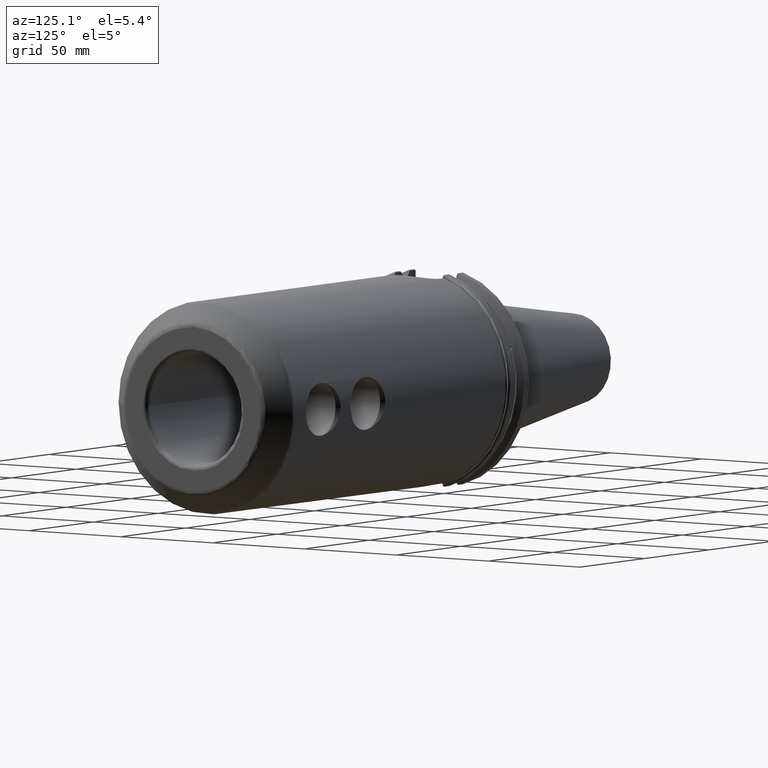
[diagram: clean part render]
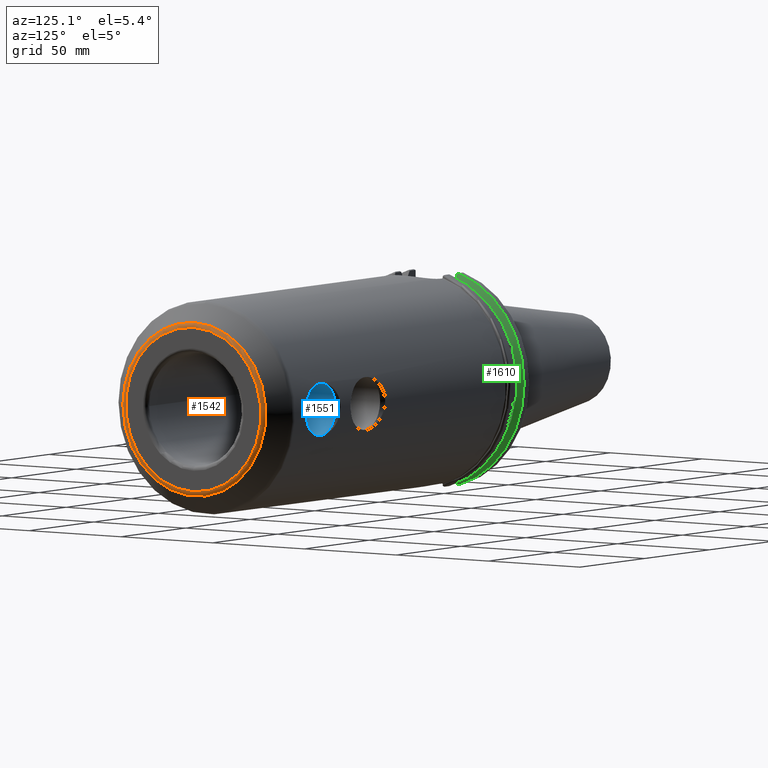
[diagram: same view with three faces highlighted in distinct colors, each labeled with its STEP entity id]
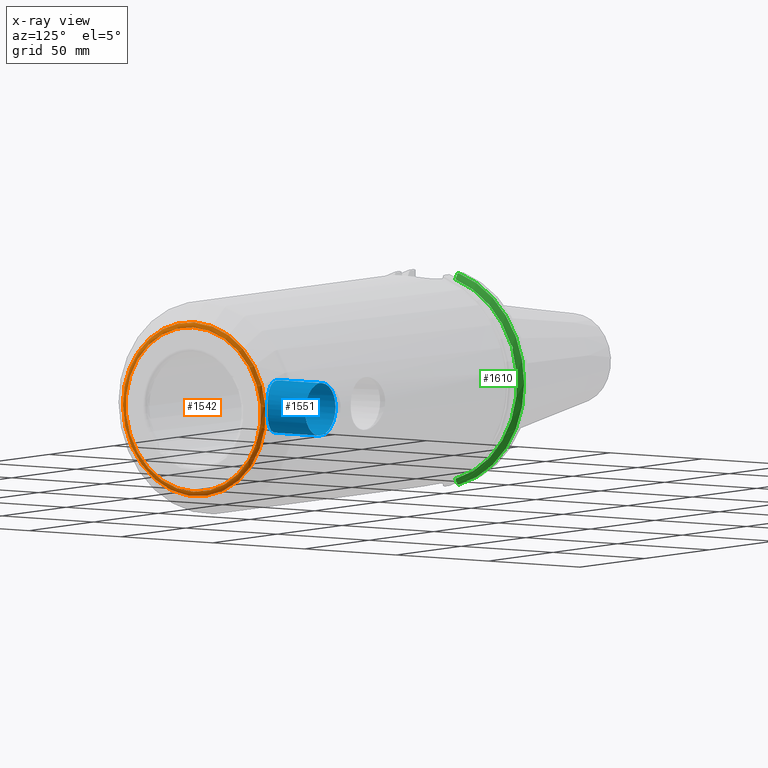
[diagram: x-ray of the same camera — body ghosted, the three highlighted faces saturated]
A machine part, auxiliary view with three faces highlighted in distinct colors.
The next image is the same camera in x-ray (body ghosted, the three faces saturated) — at least one of them is partly hidden behind the body in this view.
Their STEP definitions:

[orange] entity #1542 — the highlighted toroidal blend (fillet) surface has major radius 36.7574 mm and minor (blend) radius 3 mm.
#315=FACE_OUTER_BOUND('',#406,.T.);
#406=EDGE_LOOP('',(#1086,#1087,#1088,#1089,#1090));
#515=CIRCLE('',#1662,36.7573593128807);
#518=CIRCLE('',#1667,3.);
#519=CIRCLE('',#1668,38.8786796564404);
#520=CIRCLE('',#1669,38.8786796564404);
#661=VERTEX_POINT('',#2459);
#668=VERTEX_POINT('',#2561);
#669=VERTEX_POINT('',#2563);
#828=EDGE_CURVE('',#661,#661,#515,.T.);
#836=EDGE_CURVE('',#661,#668,#518,.T.);
#837=EDGE_CURVE('',#668,#669,#519,.T.);
#838=EDGE_CURVE('',#669,#668,#520,.T.);
#1086=ORIENTED_EDGE('',*,*,#828,.T.);
#1087=ORIENTED_EDGE('',*,*,#836,.T.);
#1088=ORIENTED_EDGE('',*,*,#837,.T.);
#1089=ORIENTED_EDGE('',*,*,#838,.T.);
#1090=ORIENTED_EDGE('',*,*,#836,.F.);
#1528=TOROIDAL_SURFACE('',#1666,36.7573593128807,3.);
#1542=ADVANCED_FACE('',(#315),#1528,.T.);
#1662=AXIS2_PLACEMENT_3D('',#2460,#1856,#1857);
#1666=AXIS2_PLACEMENT_3D('',#2560,#1865,#1866);
#1667=AXIS2_PLACEMENT_3D('',#2562,#1867,#1868);
#1668=AXIS2_PLACEMENT_3D('',#2564,#1869,#1870);
#1669=AXIS2_PLACEMENT_3D('',#2565,#1871,#1872);
#1856=DIRECTION('center_axis',(-1.,0.,0.));
#1857=DIRECTION('ref_axis',(0.,-1.,1.83697019872103E-16));
#1865=DIRECTION('center_axis',(1.,0.,0.));
#1866=DIRECTION('ref_axis',(0.,0.,-1.));
#1867=DIRECTION('center_axis',(0.,-1.,-1.22464679914735E-16));
#1868=DIRECTION('ref_axis',(0.,-1.22464679914735E-16,1.));
#1869=DIRECTION('center_axis',(1.,0.,0.));
#1870=DIRECTION('ref_axis',(0.,-1.,3.06161699786838E-17));
#1871=DIRECTION('center_axis',(1.,0.,0.));
#1872=DIRECTION('ref_axis',(0.,-1.,3.06161699786838E-17));
#2459=CARTESIAN_POINT('',(193.8,-4.50147824276285E-15,36.7573593128807));
#2460=CARTESIAN_POINT('Origin',(193.8,0.,0.));
#2560=CARTESIAN_POINT('Origin',(190.8,0.,0.));
#2561=CARTESIAN_POINT('',(192.92132034356,-4.7612650596335E-15,38.8786796564404));
#2562=CARTESIAN_POINT('Origin',(190.8,-4.50147824276285E-15,36.7573593128807));
#2563=CARTESIAN_POINT('',(192.92132034356,-38.8786796564404,-4.7612650596335E-15));
#2564=CARTESIAN_POINT('Origin',(192.92132034356,0.,-5.95158132454188E-15));
#2565=CARTESIAN_POINT('Origin',(192.92132034356,0.,-5.95158132454188E-15));

[blue] entity #1551 — the highlighted cylindrical surface (bore or boss wall) has radius 11.7221 mm, axis along (0, 1, 0).
#121=LINE('',#2614,#209);
#209=VECTOR('',#1922,11.7221);
#286=CYLINDRICAL_SURFACE('',#1688,11.7221);
#324=FACE_OUTER_BOUND('',#415,.T.);
#415=EDGE_LOOP('',(#1135,#1136,#1137,#1138,#1139));
#530=CIRCLE('',#1687,11.7221);
#598=B_SPLINE_CURVE_WITH_KNOTS('',3,(#2516,#2517,#2518,#2519,#2520,#2521,
#2522,#2523,#2524,#2525,#2526,#2527,#2528,#2529,#2530,#2531,#2532,#2533,
#2534,#2535,#2536,#2537,#2538,#2539,#2540,#2541,#2542,#2543,#2544,#2545,
#2546,#2547),.UNSPECIFIED.,.F.,.F.,(4,2,2,2,2,2,2,2,2,2,2,2,2,2,2,4),(0.,
0.224753345659515,0.44950669131903,0.89901338263806,1.34766690278389,1.79632042292972,
2.24497394307556,2.69362746322139,3.14313415454042,3.36788750019993,3.59264084585945,
3.81739419151896,4.04214753717848,4.49165422849751,4.94030774864334,5.38896126878917),
 .UNSPECIFIED.);
#599=B_SPLINE_CURVE_WITH_KNOTS('',3,(#2548,#2549,#2550,#2551,#2552,#2553,
#2554,#2555,#2556,#2557,#2558,#2559),.UNSPECIFIED.,.F.,.F.,(4,2,2,2,2,4),
(5.38896126878917,5.83761478893501,6.28626830908084,6.73577500039987,6.96052834605938,
7.1852816917189),.UNSPECIFIED.);
#666=VERTEX_POINT('',#2514);
#667=VERTEX_POINT('',#2515);
#681=VERTEX_POINT('',#2610);
#834=EDGE_CURVE('',#666,#667,#598,.T.);
#835=EDGE_CURVE('',#667,#666,#599,.T.);
#860=EDGE_CURVE('',#681,#681,#530,.T.);
#861=EDGE_CURVE('',#681,#667,#121,.T.);
#1135=ORIENTED_EDGE('',*,*,#860,.T.);
#1136=ORIENTED_EDGE('',*,*,#861,.T.);
#1137=ORIENTED_EDGE('',*,*,#834,.F.);
#1138=ORIENTED_EDGE('',*,*,#835,.F.);
#1139=ORIENTED_EDGE('',*,*,#861,.F.);
#1551=ADVANCED_FACE('',(#324),#286,.F.);
#1687=AXIS2_PLACEMENT_3D('',#2612,#1918,#1919);
#1688=AXIS2_PLACEMENT_3D('',#2613,#1920,#1921);
#1918=DIRECTION('center_axis',(0.,1.,0.));
#1919=DIRECTION('ref_axis',(-1.,0.,0.));
#1920=DIRECTION('center_axis',(0.,1.,0.));
#1921=DIRECTION('ref_axis',(-1.,0.,0.));
#1922=DIRECTION('',(0.,-1.,0.));
#2514=CARTESIAN_POINT('',(160.8,22.5333613025221,-11.7221));
#2515=CARTESIAN_POINT('',(172.5221,25.4,2.1271748883877E-15));
#2516=CARTESIAN_POINT('Ctrl Pts',(160.8,22.5333613025221,-11.7221));
#2517=CARTESIAN_POINT('Ctrl Pts',(160.050822181135,22.5333613025221,-11.7221));
#2518=CARTESIAN_POINT('Ctrl Pts',(159.280543693546,22.5718036598004,-11.6491388330942));
#2519=CARTESIAN_POINT('Ctrl Pts',(157.756481741729,22.7253289562751,-11.3467255072969));
#2520=CARTESIAN_POINT('Ctrl Pts',(157.002653001865,22.8401860848915,-11.1173869403761));
#2521=CARTESIAN_POINT('Ctrl Pts',(154.843161234683,23.2646449416797,-10.2155668802038));
#2522=CARTESIAN_POINT('Ctrl Pts',(153.54049681021,23.6541670271324,-9.318049609704));
#2523=CARTESIAN_POINT('Ctrl Pts',(151.48390396796,24.3641625206674,-7.26145676745388));
#2524=CARTESIAN_POINT('Ctrl Pts',(150.584932396075,24.7347054681876,-5.95809888288209));
#2525=CARTESIAN_POINT('Ctrl Pts',(149.381356426275,25.255563041573,-3.07589548959986));
#2526=CARTESIAN_POINT('Ctrl Pts',(149.0779,25.4,-1.49551173381944));
#2527=CARTESIAN_POINT('Ctrl Pts',(149.0779,25.4,1.49551173381944));
#2528=CARTESIAN_POINT('Ctrl Pts',(149.381356426275,25.255563041573,3.07589548959986));
#2529=CARTESIAN_POINT('Ctrl Pts',(150.584932396075,24.7347054681876,5.95809888288209));
#2530=CARTESIAN_POINT('Ctrl Pts',(151.48390396796,24.3641625206674,7.26145676745388));
#2531=CARTESIAN_POINT('Ctrl Pts',(153.54049681021,23.6541670271324,9.318049609704));
#2532=CARTESIAN_POINT('Ctrl Pts',(154.843161234683,23.2646449416797,10.2155668802038));
#2533=CARTESIAN_POINT('Ctrl Pts',(157.002653001865,22.8401860848915,11.1173869403761));
#2534=CARTESIAN_POINT('Ctrl Pts',(157.756481741729,22.7253289562751,11.3467255072969));
#2535=CARTESIAN_POINT('Ctrl Pts',(159.280543693546,22.5718036598004,11.6491388330942));
#2536=CARTESIAN_POINT('Ctrl Pts',(160.050822181135,22.5333613025221,11.7221));
#2537=CARTESIAN_POINT('Ctrl Pts',(161.549177818865,22.5333613025221,11.7221));
#2538=CARTESIAN_POINT('Ctrl Pts',(162.319456306454,22.5718036598004,11.6491388330942));
#2539=CARTESIAN_POINT('Ctrl Pts',(163.843518258271,22.7253289562751,11.3467255072969));
#2540=CARTESIAN_POINT('Ctrl Pts',(164.597346998135,22.8401860848915,11.1173869403761));
#2541=CARTESIAN_POINT('Ctrl Pts',(166.756838765317,23.2646449416797,10.2155668802038));
#2542=CARTESIAN_POINT('Ctrl Pts',(168.05950318979,23.6541670271324,9.318049609704));
#2543=CARTESIAN_POINT('Ctrl Pts',(170.11609603204,24.3641625206674,7.26145676745388));
#2544=CARTESIAN_POINT('Ctrl Pts',(171.015067603925,24.7347054681876,5.95809888288208));
#2545=CARTESIAN_POINT('Ctrl Pts',(172.218643573725,25.255563041573,3.07589548959987));
#2546=CARTESIAN_POINT('Ctrl Pts',(172.5221,25.4,1.49551173381944));
#2547=CARTESIAN_POINT('Ctrl Pts',(172.5221,25.4,2.08166817117217E-15));
#2548=CARTESIAN_POINT('Ctrl Pts',(172.5221,25.4,5.82867087928207E-15));
#2549=CARTESIAN_POINT('Ctrl Pts',(172.5221,25.4,-1.49551173381944));
#2550=CARTESIAN_POINT('Ctrl Pts',(172.218643573725,25.255563041573,-3.07589548959987));
#2551=CARTESIAN_POINT('Ctrl Pts',(171.015067603925,24.7347054681876,-5.95809888288208));
#2552=CARTESIAN_POINT('Ctrl Pts',(170.11609603204,24.3641625206674,-7.26145676745388));
#2553=CARTESIAN_POINT('Ctrl Pts',(168.05950318979,23.6541670271324,-9.318049609704));
#2554=CARTESIAN_POINT('Ctrl Pts',(166.756838765317,23.2646449416797,-10.2155668802038));
#2555=CARTESIAN_POINT('Ctrl Pts',(164.597346998135,22.8401860848915,-11.1173869403761));
#2556=CARTESIAN_POINT('Ctrl Pts',(163.843518258271,22.7253289562751,-11.3467255072969));
#2557=CARTESIAN_POINT('Ctrl Pts',(162.319456306454,22.5718036598004,-11.6491388330942));
#2558=CARTESIAN_POINT('Ctrl Pts',(161.549177818865,22.5333613025221,-11.7221));
#2559=CARTESIAN_POINT('Ctrl Pts',(160.8,22.5333613025221,-11.7221));
#2610=CARTESIAN_POINT('',(172.5221,46.0071,-1.43554322442852E-15));
#2612=CARTESIAN_POINT('Origin',(160.8,46.0071,0.));
#2613=CARTESIAN_POINT('Origin',(160.8,27.625,0.));
#2614=CARTESIAN_POINT('',(172.5221,27.625,-1.43554322442852E-15));

[green] entity #1610 — the highlighted conical surface has half-angle 60 deg.
#26=(
BOUNDED_CURVE()
B_SPLINE_CURVE(2,(#3239,#3240,#3241),.UNSPECIFIED.,.F.,.F.)
B_SPLINE_CURVE_WITH_KNOTS((3,3),(0.,0.275823910674931),.UNSPECIFIED.)
CURVE()
GEOMETRIC_REPRESENTATION_ITEM()
RATIONAL_B_SPLINE_CURVE((1.,1.00038235574495,1.0001287363679))
REPRESENTATION_ITEM('')
);
#31=(
BOUNDED_CURVE()
B_SPLINE_CURVE(2,(#3381,#3382,#3383),.UNSPECIFIED.,.F.,.F.)
B_SPLINE_CURVE_WITH_KNOTS((3,3),(0.,0.064824047289788),.UNSPECIFIED.)
CURVE()
GEOMETRIC_REPRESENTATION_ITEM()
RATIONAL_B_SPLINE_CURVE((1.,1.00011477674855,1.00019140645979))
REPRESENTATION_ITEM('')
);
#32=(
BOUNDED_CURVE()
B_SPLINE_CURVE(2,(#3403,#3404,#3405),.UNSPECIFIED.,.F.,.F.)
B_SPLINE_CURVE_WITH_KNOTS((3,3),(0.0558332664474718,0.331657177124507),
 .UNSPECIFIED.)
CURVE()
GEOMETRIC_REPRESENTATION_ITEM()
RATIONAL_B_SPLINE_CURVE((1.00012873637085,1.00038235575372,1.))
REPRESENTATION_ITEM('')
);
#33=(
BOUNDED_CURVE()
B_SPLINE_CURVE(2,(#3421,#3422,#3423),.UNSPECIFIED.,.F.,.F.)
B_SPLINE_CURVE_WITH_KNOTS((3,3),(0.325260944932384,0.390084992222206),
 .UNSPECIFIED.)
CURVE()
GEOMETRIC_REPRESENTATION_ITEM()
RATIONAL_B_SPLINE_CURVE((1.00019140645948,1.00011477674836,1.))
REPRESENTATION_ITEM('')
);
#45=CONICAL_SURFACE('',#1796,47.8172386482472,1.0471975511966);
#383=FACE_OUTER_BOUND('',#489,.T.);
#489=EDGE_LOOP('',(#1466,#1467,#1468,#1469,#1470,#1471,#1472,#1473));
#553=CIRCLE('',#1737,46.4219772964944);
#575=CIRCLE('',#1787,49.2125);
#578=CIRCLE('',#1797,46.4219772964944);
#620=B_SPLINE_CURVE_WITH_KNOTS('',3,(#3068,#3069,#3070,#3071,#3072,#3073,
#3074,#3075,#3076,#3077,#3078,#3079,#3080,#3081),.UNSPECIFIED.,.F.,.F.,
(4,2,2,2,2,2,4),(0.426712868358721,0.441644498666905,0.480313313223129,
0.518982127779352,0.557650942335576,0.596319756891799,0.611251387199981),
 .UNSPECIFIED.);
#731=VERTEX_POINT('',#3065);
#732=VERTEX_POINT('',#3067);
#744=VERTEX_POINT('',#3142);
#767=VERTEX_POINT('',#3236);
#768=VERTEX_POINT('',#3238);
#789=VERTEX_POINT('',#3379);
#795=VERTEX_POINT('',#3402);
#796=VERTEX_POINT('',#3413);
#926=EDGE_CURVE('',#732,#731,#620,.T.);
#942=EDGE_CURVE('',#732,#744,#553,.T.);
#975=EDGE_CURVE('',#768,#767,#26,.T.);
#1010=EDGE_CURVE('',#789,#767,#31,.T.);
#1019=EDGE_CURVE('',#795,#744,#32,.T.);
#1025=EDGE_CURVE('',#789,#796,#575,.T.);
#1027=EDGE_CURVE('',#795,#796,#33,.T.);
#1032=EDGE_CURVE('',#768,#731,#578,.T.);
#1466=ORIENTED_EDGE('',*,*,#926,.T.);
#1467=ORIENTED_EDGE('',*,*,#1032,.F.);
#1468=ORIENTED_EDGE('',*,*,#975,.T.);
#1469=ORIENTED_EDGE('',*,*,#1010,.F.);
#1470=ORIENTED_EDGE('',*,*,#1025,.T.);
#1471=ORIENTED_EDGE('',*,*,#1027,.F.);
#1472=ORIENTED_EDGE('',*,*,#1019,.T.);
#1473=ORIENTED_EDGE('',*,*,#942,.F.);
#1610=ADVANCED_FACE('',(#383),#45,.T.);
#1737=AXIS2_PLACEMENT_3D('',#3143,#2046,#2047);
#1787=AXIS2_PLACEMENT_3D('',#3415,#2183,#2184);
#1796=AXIS2_PLACEMENT_3D('',#3433,#2204,#2205);
#1797=AXIS2_PLACEMENT_3D('',#3434,#2206,#2207);
#2046=DIRECTION('center_axis',(1.,0.,0.));
#2047=DIRECTION('ref_axis',(0.,0.,-1.));
#2183=DIRECTION('center_axis',(1.,0.,0.));
#2184=DIRECTION('ref_axis',(0.,0.,-1.));
#2204=DIRECTION('center_axis',(-1.,0.,0.));
#2205=DIRECTION('ref_axis',(0.,1.,0.));
#2206=DIRECTION('center_axis',(1.,0.,0.));
#2207=DIRECTION('ref_axis',(0.,0.,-1.));
#3065=CARTESIAN_POINT('',(9.21200000000001,43.9096390749305,15.0646464421033));
#3067=CARTESIAN_POINT('',(9.21200000000001,43.3201030900029,16.6843832486479));
#3068=CARTESIAN_POINT('Ctrl Pts',(9.212,43.3201030900029,16.6843832486479));
#3069=CARTESIAN_POINT('Ctrl Pts',(9.19501843903392,43.3613106941341,16.6592273018006));
#3070=CARTESIAN_POINT('Ctrl Pts',(9.17898675403323,43.4012416983557,16.6326763251437));
#3071=CARTESIAN_POINT('Ctrl Pts',(9.12528673845038,43.539103734322,16.5325130832406));
#3072=CARTESIAN_POINT('Ctrl Pts',(9.08911610663556,43.6406982153491,16.441180795372));
#3073=CARTESIAN_POINT('Ctrl Pts',(9.03980868251976,43.8110833825827,16.2291323464527));
#3074=CARTESIAN_POINT('Ctrl Pts',(9.027,43.8794096049168,16.10796730316));
#3075=CARTESIAN_POINT('Ctrl Pts',(9.027,43.9675796948952,15.8657219718732));
#3076=CARTESIAN_POINT('Ctrl Pts',(9.03980868251976,43.9931221605125,15.7289849146254));
#3077=CARTESIAN_POINT('Ctrl Pts',(9.08911610663556,43.9989016655819,15.4570249042867));
#3078=CARTESIAN_POINT('Ctrl Pts',(9.12528673845038,43.9797830409458,15.3217566390708));
#3079=CARTESIAN_POINT('Ctrl Pts',(9.17898675403322,43.9385582852181,15.1564111356409));
#3080=CARTESIAN_POINT('Ctrl Pts',(9.19501843903391,43.9250360001461,15.1104047527575));
#3081=CARTESIAN_POINT('Ctrl Pts',(9.21199999999999,43.9096390749305,15.0646464421033));
#3142=CARTESIAN_POINT('',(9.21200000000001,12.95,44.5791147973604));
#3143=CARTESIAN_POINT('Origin',(9.21200000000001,0.,0.));
#3236=CARTESIAN_POINT('',(7.87928960562424,12.95,-46.9780755322918));
#3238=CARTESIAN_POINT('',(9.21200000000001,12.95,-44.5791147973604));
#3239=CARTESIAN_POINT('Ctrl Pts',(9.21200000000001,12.95,-44.5791147973604));
#3240=CARTESIAN_POINT('Ctrl Pts',(8.5631044905565,12.95,-45.7494966802185));
#3241=CARTESIAN_POINT('Ctrl Pts',(7.87928960562424,12.95,-46.9780755322917));
#3379=CARTESIAN_POINT('',(7.60089096595127,13.4317035994433,-47.3440544806494));
#3381=CARTESIAN_POINT('Ctrl Pts',(7.60089096595127,13.4317035994433,-47.3440544806494));
#3382=CARTESIAN_POINT('Ctrl Pts',(7.74116896663821,13.1896660169966,-47.1601640966264));
#3383=CARTESIAN_POINT('Ctrl Pts',(7.87928960562424,12.95,-46.9780755322918));
#3402=CARTESIAN_POINT('',(7.87928960562422,12.95,46.9780755322917));
#3403=CARTESIAN_POINT('Ctrl Pts',(7.87928960562422,12.95,46.9780755322917));
#3404=CARTESIAN_POINT('Ctrl Pts',(8.5631044905765,12.95,45.7494966801825));
#3405=CARTESIAN_POINT('Ctrl Pts',(9.21200000000001,12.95,44.5791147973604));
#3413=CARTESIAN_POINT('',(7.60089096595127,13.4317035994433,47.3440544806494));
#3415=CARTESIAN_POINT('Origin',(7.60089096595127,0.,0.));
#3421=CARTESIAN_POINT('Ctrl Pts',(7.87928960562422,12.95,46.9780755322917));
#3422=CARTESIAN_POINT('Ctrl Pts',(7.74116896663815,13.1896660169967,47.1601640966265));
#3423=CARTESIAN_POINT('Ctrl Pts',(7.60089096595127,13.4317035994433,47.3440544806494));
#3433=CARTESIAN_POINT('Origin',(8.40644548297563,0.,0.));
#3434=CARTESIAN_POINT('Origin',(9.21200000000001,0.,0.));